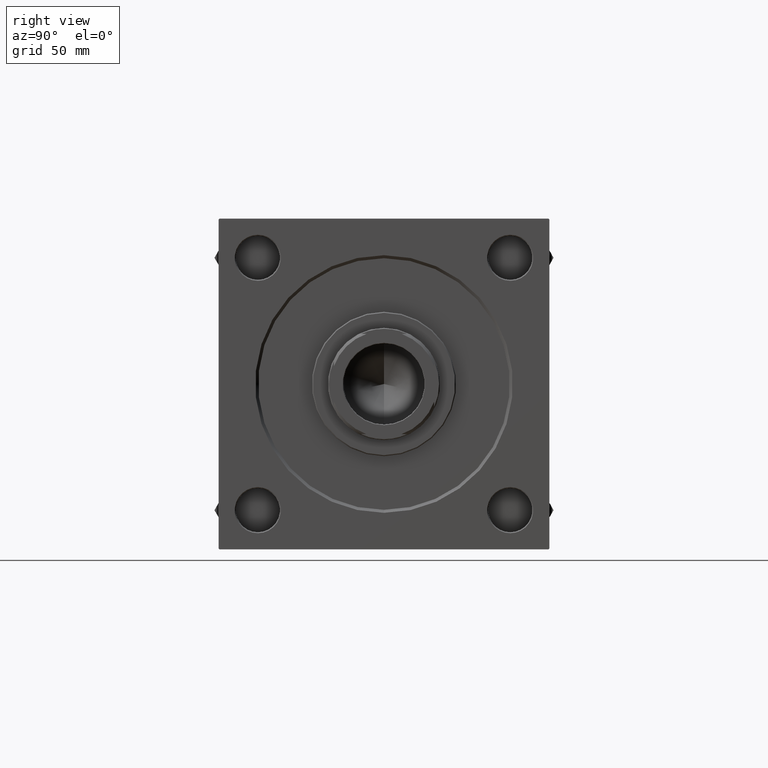
[diagram: clean part render]
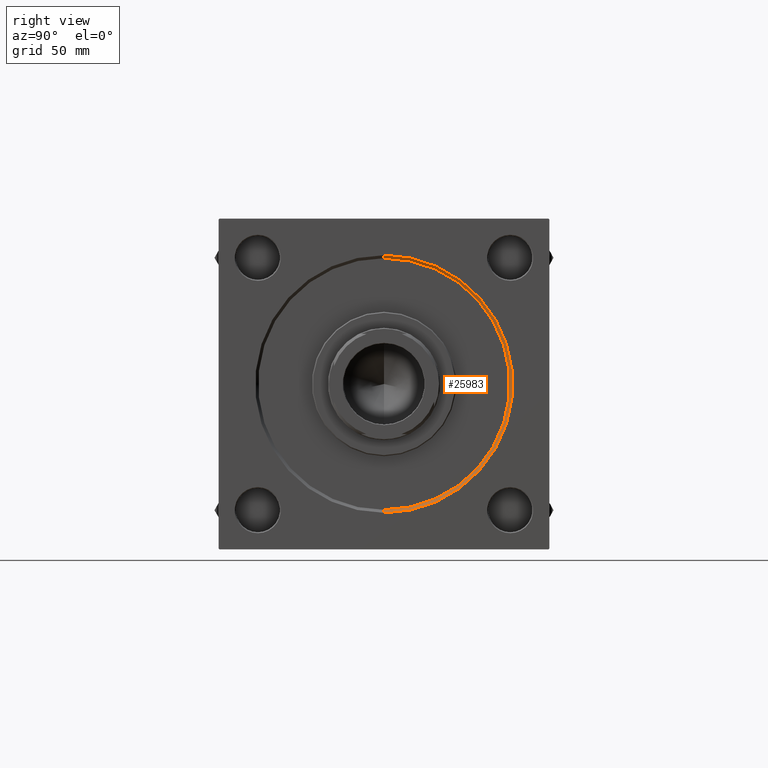
[diagram: same view with one face highlighted and labeled with its STEP entity id]
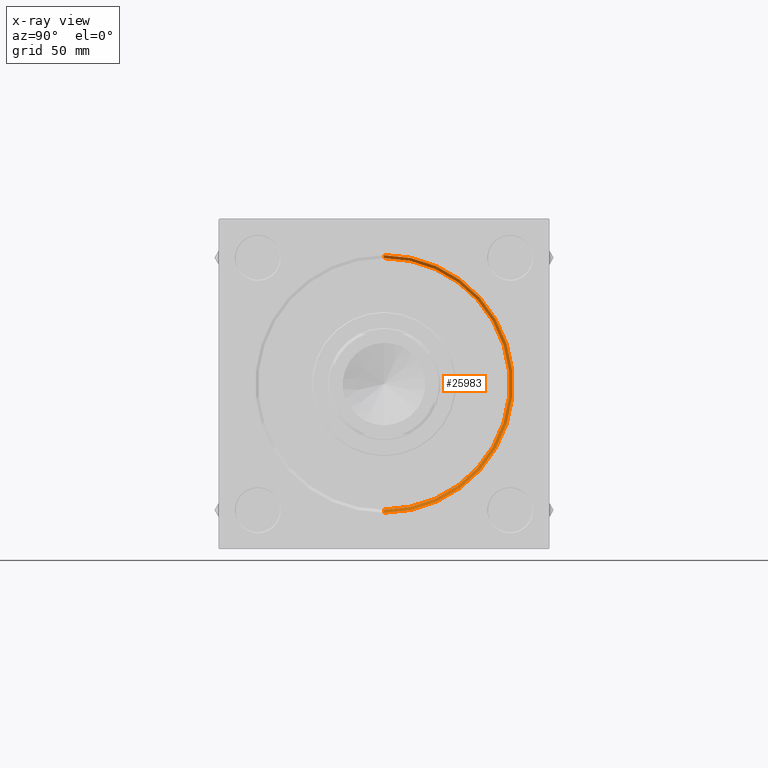
[diagram: x-ray of the same camera — body ghosted, the highlighted face saturated]
A machine part, right view. The second image highlights one B-rep face of the part: STEP entity #25983.
The next image is the same camera in x-ray: the body ghosted, the highlighted face saturated — about 0% of this face is hidden behind the body in this view.
In plain terms, the highlighted conical surface has half-angle 45 deg.
Its self-contained STEP definition (entity closure, byte-faithful):
#762 = DIRECTION ( 'NONE',  ( 1.000000000000000000, 0.000000000000000000, 0.000000000000000000 ) ) ;
#3939 = EDGE_CURVE ( 'NONE', #18642, #46367, #50558, .T. ) ;
#4123 = CIRCLE ( 'NONE', #9048, 62.75000000000000000 ) ;
#6499 = EDGE_LOOP ( 'NONE', ( #11312, #46470, #16201, #11635 ) ) ;
#8379 = CARTESIAN_POINT ( 'NONE',  ( 215.5000000000000284, 0.000000000000000000, -62.75000000000000000 ) ) ;
#9048 = AXIS2_PLACEMENT_3D ( 'NONE', #35137, #34385, #27158 ) ;
#9977 = AXIS2_PLACEMENT_3D ( 'NONE', #32115, #762, #47234 ) ;
#11312 = ORIENTED_EDGE ( 'NONE', *, *, #3939, .F. ) ;
#11635 = ORIENTED_EDGE ( 'NONE', *, *, #28599, .F. ) ;
#13497 = CARTESIAN_POINT ( 'NONE',  ( 217.0000000000000284, 7.868355684521741158E-15, 64.24999999999997158 ) ) ;
#16201 = ORIENTED_EDGE ( 'NONE', *, *, #38029, .T. ) ;
#17263 = DIRECTION ( 'NONE',  ( -1.000000000000000000, 0.000000000000000000, -0.000000000000000000 ) ) ;
#17828 = CARTESIAN_POINT ( 'NONE',  ( 217.0000000000000284, 0.000000000000000000, -64.24999999999997158 ) ) ;
#18383 = VECTOR ( 'NONE', #23136, 1000.000000000000114 ) ;
#18642 = VERTEX_POINT ( 'NONE', #43269 ) ;
#18915 = CARTESIAN_POINT ( 'NONE',  ( 215.5000000000000284, 0.000000000000000000, -62.75000000000000000 ) ) ;
#19266 = FACE_OUTER_BOUND ( 'NONE', #6499, .T. ) ;
#23136 = DIRECTION ( 'NONE',  ( 0.7071067811865540120, 8.659560562354852739E-17, 0.7071067811865410224 ) ) ;
#24446 = DIRECTION ( 'NONE',  ( 0.000000000000000000, 0.000000000000000000, 1.000000000000000000 ) ) ;
#25510 = AXIS2_PLACEMENT_3D ( 'NONE', #32925, #17263, #24446 ) ;
#25983 = ADVANCED_FACE ( 'NONE', ( #19266 ), #30500, .F. ) ;
#27158 = DIRECTION ( 'NONE',  ( 0.000000000000000000, 0.000000000000000000, 1.000000000000000000 ) ) ;
#28599 = EDGE_CURVE ( 'NONE', #46367, #36798, #47639, .T. ) ;
#30500 = CONICAL_SURFACE ( 'NONE', #9977, 62.75000000000000000, 0.7853981633974391752 ) ;
#32034 = VECTOR ( 'NONE', #39696, 1000.000000000000114 ) ;
#32115 = CARTESIAN_POINT ( 'NONE',  ( 215.5000000000000284, 0.000000000000000000, 0.000000000000000000 ) ) ;
#32925 = CARTESIAN_POINT ( 'NONE',  ( 217.0000000000000284, 0.000000000000000000, 0.000000000000000000 ) ) ;
#34385 = DIRECTION ( 'NONE',  ( 1.000000000000000000, 0.000000000000000000, 0.000000000000000000 ) ) ;
#35137 = CARTESIAN_POINT ( 'NONE',  ( 215.5000000000000284, 0.000000000000000000, 0.000000000000000000 ) ) ;
#36798 = VERTEX_POINT ( 'NONE', #17828 ) ;
#38029 = EDGE_CURVE ( 'NONE', #46142, #36798, #43548, .T. ) ;
#39696 = DIRECTION ( 'NONE',  ( 0.7071067811865540120, 0.000000000000000000, -0.7071067811865410224 ) ) ;
#41037 = EDGE_CURVE ( 'NONE', #46142, #18642, #4123, .T. ) ;
#43269 = CARTESIAN_POINT ( 'NONE',  ( 215.5000000000000284, 7.684658664649641591E-15, 62.75000000000000000 ) ) ;
#43548 = LINE ( 'NONE', #8379, #32034 ) ;
#45993 = CARTESIAN_POINT ( 'NONE',  ( 215.5000000000000284, 7.684658664649641591E-15, 62.75000000000000000 ) ) ;
#46142 = VERTEX_POINT ( 'NONE', #18915 ) ;
#46367 = VERTEX_POINT ( 'NONE', #13497 ) ;
#46470 = ORIENTED_EDGE ( 'NONE', *, *, #41037, .F. ) ;
#47234 = DIRECTION ( 'NONE',  ( 0.000000000000000000, 0.000000000000000000, -1.000000000000000000 ) ) ;
#47639 = CIRCLE ( 'NONE', #25510, 64.24999999999997158 ) ;
#50558 = LINE ( 'NONE', #45993, #18383 ) ;